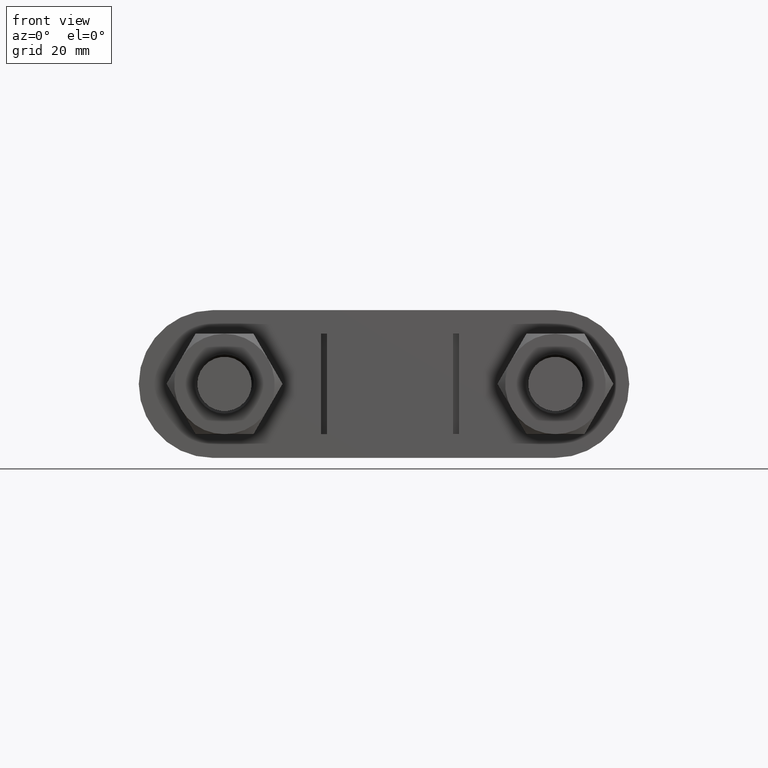
[diagram: clean part render]
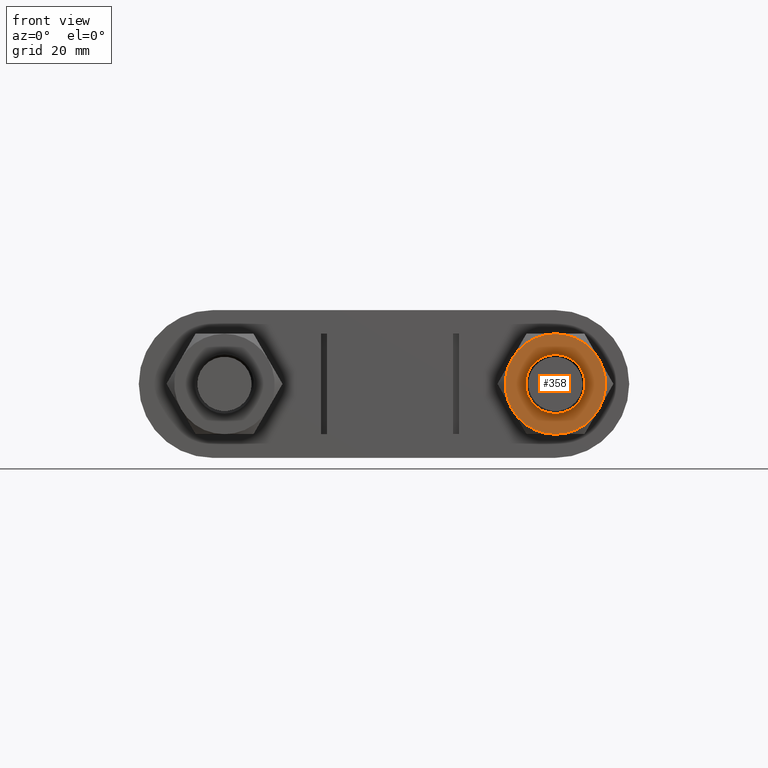
[diagram: same view with one face highlighted and labeled with its STEP entity id]
A machine part, front view. The second image highlights one B-rep face of the part: STEP entity #358.
In plain terms, the highlighted planar face has unit normal (0, 1, 0).
Its self-contained STEP definition (entity closure, byte-faithful):
#358 = ADVANCED_FACE( '', ( #589, #590 ), #591, .F. );
#589 = FACE_OUTER_BOUND( '', #1671, .T. );
#590 = FACE_BOUND( '', #1672, .T. );
#591 = PLANE( '', #1673 );
#1671 = EDGE_LOOP( '', ( #2379, #2380, #2381, #2382, #2383, #2384 ) );
#1672 = EDGE_LOOP( '', ( #2385 ) );
#1673 = AXIS2_PLACEMENT_3D( '', #2386, #2387, #2388 );
#2379 = ORIENTED_EDGE( '', *, *, #2737, .F. );
#2380 = ORIENTED_EDGE( '', *, *, #2738, .F. );
#2381 = ORIENTED_EDGE( '', *, *, #2739, .F. );
#2382 = ORIENTED_EDGE( '', *, *, #2740, .F. );
#2383 = ORIENTED_EDGE( '', *, *, #2735, .F. );
#2384 = ORIENTED_EDGE( '', *, *, #2741, .F. );
#2385 = ORIENTED_EDGE( '', *, *, #2742, .T. );
#2386 = CARTESIAN_POINT( '', ( 28.0000000000000, 17.0000000000007, 6.20413009161386E-015 ) );
#2387 = DIRECTION( '', ( 1.22460635382238E-016, 1.00000000000000, 1.83690953073357E-016 ) );
#2388 = DIRECTION( '', ( 1.17504990182597E-008, -1.83690954512330E-016, 1.00000000000000 ) );
#2735 = EDGE_CURVE( '', #3100, #3102, #3103, .T. );
#2737 = EDGE_CURVE( '', #3105, #3106, #3107, .T. );
#2738 = EDGE_CURVE( '', #3108, #3105, #3109, .T. );
#2739 = EDGE_CURVE( '', #3110, #3108, #3111, .T. );
#2740 = EDGE_CURVE( '', #3102, #3110, #3112, .T. );
#2741 = EDGE_CURVE( '', #3106, #3100, #3113, .T. );
#2742 = EDGE_CURVE( '', #3114, #3114, #3115, .T. );
#3100 = VERTEX_POINT( '', #3894 );
#3102 = VERTEX_POINT( '', #3901 );
#3103 = CIRCLE( '', #3902, 8.50000000000000 );
#3105 = VERTEX_POINT( '', #3911 );
#3106 = VERTEX_POINT( '', #3912 );
#3107 = CIRCLE( '', #3913, 8.50000000000000 );
#3108 = VERTEX_POINT( '', #3914 );
#3109 = CIRCLE( '', #3915, 8.50000000000000 );
#3110 = VERTEX_POINT( '', #3916 );
#3111 = CIRCLE( '', #3917, 8.50000000000000 );
#3112 = CIRCLE( '', #3918, 8.50000000000000 );
#3113 = CIRCLE( '', #3919, 8.50000000000000 );
#3114 = VERTEX_POINT( '', #3920 );
#3115 = CIRCLE( '', #3921, 5.00000000000000 );
#3894 = CARTESIAN_POINT( '', ( 27.9999999001208, 17.0000000000007, -8.49999999999999 ) );
#3901 = CARTESIAN_POINT( '', ( 20.6387840178933, 17.0000000000007, -4.24999991350203 ) );
#3902 = AXIS2_PLACEMENT_3D( '', #4336, #4337, #4338 );
#3911 = CARTESIAN_POINT( '', ( 35.3612159821067, 17.0000000000007, 4.24999991350205 ) );
#3912 = CARTESIAN_POINT( '', ( 35.3612158822275, 17.0000000000007, -4.25000008649795 ) );
#3913 = AXIS2_PLACEMENT_3D( '', #4339, #4340, #4341 );
#3914 = CARTESIAN_POINT( '', ( 28.0000000998792, 17.0000000000007, 8.50000000000001 ) );
#3915 = AXIS2_PLACEMENT_3D( '', #4342, #4343, #4344 );
#3916 = CARTESIAN_POINT( '', ( 20.6387841177725, 17.0000000000007, 4.25000008649797 ) );
#3917 = AXIS2_PLACEMENT_3D( '', #4345, #4346, #4347 );
#3918 = AXIS2_PLACEMENT_3D( '', #4348, #4349, #4350 );
#3919 = AXIS2_PLACEMENT_3D( '', #4351, #4352, #4353 );
#3920 = CARTESIAN_POINT( '', ( 28.0000000587525, 17.0000000000007, 5.00000000000001 ) );
#3921 = AXIS2_PLACEMENT_3D( '', #4354, #4355, #4356 );
#4336 = CARTESIAN_POINT( '', ( 28.0000000000000, 17.0000000000007, 6.20413009161386E-015 ) );
#4337 = DIRECTION( '', ( 1.22460635382238E-016, 1.00000000000000, 1.83690953073357E-016 ) );
#4338 = DIRECTION( '', ( 1.17504990182597E-008, -1.83690954512330E-016, 1.00000000000000 ) );
#4339 = CARTESIAN_POINT( '', ( 28.0000000000000, 17.0000000000007, 6.20413009161386E-015 ) );
#4340 = DIRECTION( '', ( 1.22460635382238E-016, 1.00000000000000, 1.83690953073357E-016 ) );
#4341 = DIRECTION( '', ( 1.17504990182597E-008, -1.83690954512330E-016, 1.00000000000000 ) );
#4342 = CARTESIAN_POINT( '', ( 28.0000000000000, 17.0000000000007, 6.20413009161386E-015 ) );
#4343 = DIRECTION( '', ( 1.22460635382238E-016, 1.00000000000000, 1.83690953073357E-016 ) );
#4344 = DIRECTION( '', ( 1.17504990182597E-008, -1.83690954512330E-016, 1.00000000000000 ) );
#4345 = CARTESIAN_POINT( '', ( 28.0000000000000, 17.0000000000007, 6.20413009161386E-015 ) );
#4346 = DIRECTION( '', ( 1.22460635382238E-016, 1.00000000000000, 1.83690953073357E-016 ) );
#4347 = DIRECTION( '', ( 1.17504990182597E-008, -1.83690954512330E-016, 1.00000000000000 ) );
#4348 = CARTESIAN_POINT( '', ( 28.0000000000000, 17.0000000000007, 6.20413009161386E-015 ) );
#4349 = DIRECTION( '', ( 1.22460635382238E-016, 1.00000000000000, 1.83690953073357E-016 ) );
#4350 = DIRECTION( '', ( 1.17504990182597E-008, -1.83690954512330E-016, 1.00000000000000 ) );
#4351 = CARTESIAN_POINT( '', ( 28.0000000000000, 17.0000000000007, 6.20413009161386E-015 ) );
#4352 = DIRECTION( '', ( 1.22460635382238E-016, 1.00000000000000, 1.83690953073357E-016 ) );
#4353 = DIRECTION( '', ( 1.17504990182597E-008, -1.83690954512330E-016, 1.00000000000000 ) );
#4354 = CARTESIAN_POINT( '', ( 28.0000000000000, 17.0000000000007, 6.20413009161386E-015 ) );
#4355 = DIRECTION( '', ( 1.22460635382238E-016, 1.00000000000000, 1.83690953073357E-016 ) );
#4356 = DIRECTION( '', ( 1.17504990182597E-008, -1.83690954512330E-016, 1.00000000000000 ) );